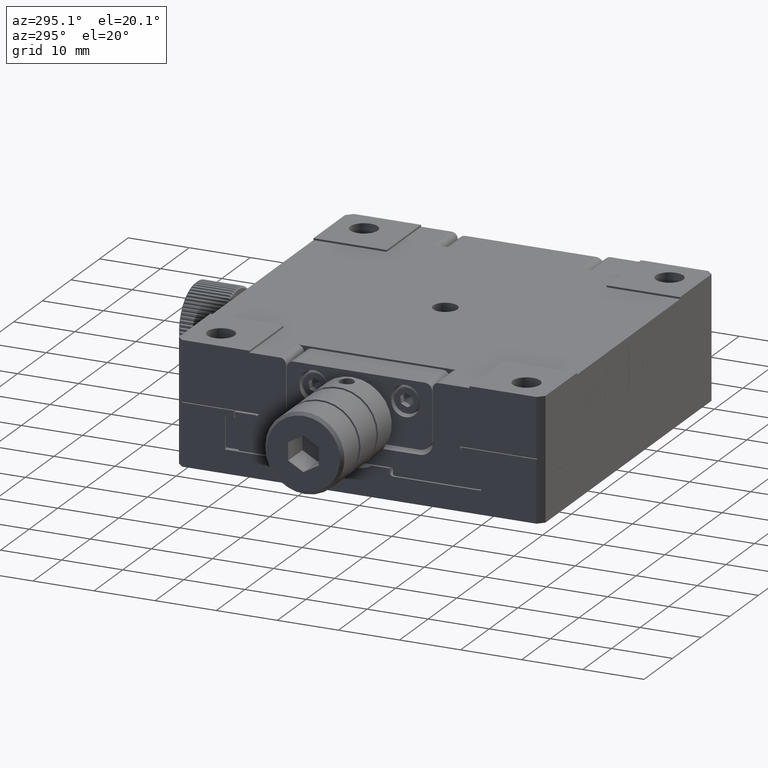
[diagram: clean part render]
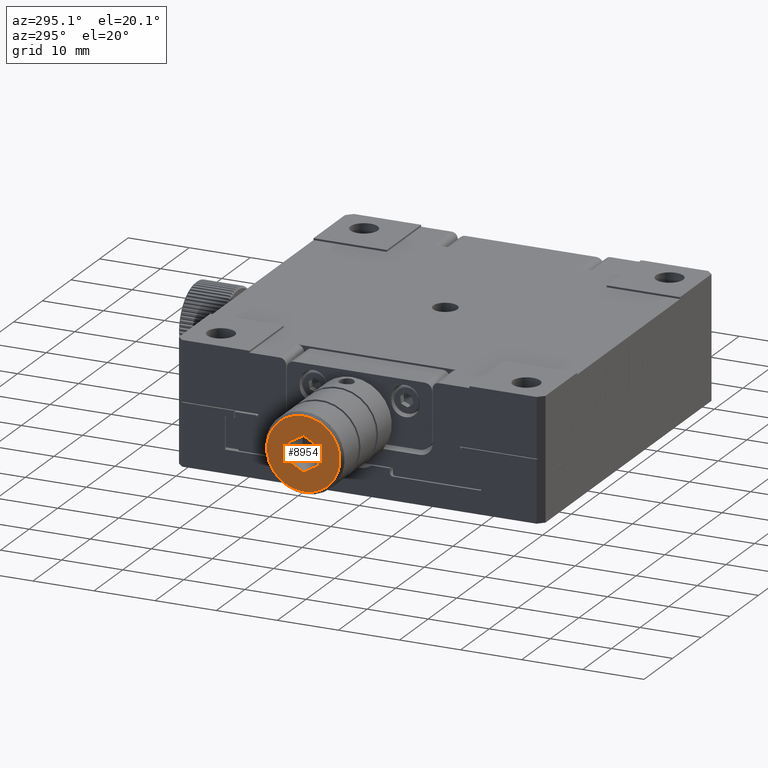
[diagram: same view with one face highlighted and labeled with its STEP entity id]
A machine part, auxiliary view. The second image highlights one B-rep face of the part: STEP entity #8954.
In plain terms, the highlighted planar face has unit normal (1, 0, 0).
Its self-contained STEP definition (entity closure, byte-faithful):
#179 = EDGE_CURVE ( 'NONE', #11568, #2372, #26146, .T. ) ;
#699 = CARTESIAN_POINT ( 'NONE',  ( -49.54999999999999005, -2.500000000000007550, 94.44337567297404235 ) ) ;
#1236 = DIRECTION ( 'NONE',  ( 1.000000000000000000, 3.947454862354369976E-30, 1.681558157189780485E-44 ) ) ;
#1424 = FACE_BOUND ( 'NONE', #18571, .T. ) ;
#2244 = LINE ( 'NONE', #13769, #31526 ) ;
#2372 = VERTEX_POINT ( 'NONE', #28514 ) ;
#3397 = CARTESIAN_POINT ( 'NONE',  ( -49.54999999999999005, -6.872842731605662646E-15, 90.11324865405185847 ) ) ;
#3713 = DIRECTION ( 'NONE',  ( 0.000000000000000000, 0.8660254037844390407, 0.4999999999999993339 ) ) ;
#4070 = DIRECTION ( 'NONE',  ( -3.947454862354369976E-30, 1.000000000000000000, 0.000000000000000000 ) ) ;
#5331 = CARTESIAN_POINT ( 'NONE',  ( -49.55000000006748451, -6.938893903907228378E-15, 87.00000000002816591 ) ) ;
#5460 = CARTESIAN_POINT ( 'NONE',  ( -49.54999999999999005, 2.499999999999992895, 94.44337567297404235 ) ) ;
#5756 = LINE ( 'NONE', #31217, #34509 ) ;
#5992 = CARTESIAN_POINT ( 'NONE',  ( -49.55000000006748451, -6.938893903907228378E-15, 92.99999999999998579 ) ) ;
#6703 = ORIENTED_EDGE ( 'NONE', *, *, #16441, .F. ) ;
#7062 = VERTEX_POINT ( 'NONE', #20707 ) ;
#7107 = ORIENTED_EDGE ( 'NONE', *, *, #17679, .F. ) ;
#8385 = DIRECTION ( 'NONE',  ( 0.000000000000000000, -0.8660254037844369313, -0.5000000000000028866 ) ) ;
#8411 = VECTOR ( 'NONE', #8524, 1000.000000000000000 ) ;
#8524 = DIRECTION ( 'NONE',  ( 0.000000000000000000, 0.8660254037844390407, -0.4999999999999993339 ) ) ;
#8954 = ADVANCED_FACE ( 'NONE', ( #27061, #1424 ), #27251, .F. ) ;
#9633 = VECTOR ( 'NONE', #23330, 1000.000000000000000 ) ;
#9974 = VECTOR ( 'NONE', #35272, 1000.000000000000227 ) ;
#10806 = VERTEX_POINT ( 'NONE', #5331 ) ;
#11272 = DIRECTION ( 'NONE',  ( 1.000000000000000000, 0.000000000000000000, -0.000000000000000000 ) ) ;
#11568 = VERTEX_POINT ( 'NONE', #35283 ) ;
#11733 = EDGE_LOOP ( 'NONE', ( #6703 ) ) ;
#11820 = CARTESIAN_POINT ( 'NONE',  ( -49.54999999999999005, -2.500000000000007550, 92.99999999999998579 ) ) ;
#11872 = ORIENTED_EDGE ( 'NONE', *, *, #13834, .F. ) ;
#13769 = CARTESIAN_POINT ( 'NONE',  ( -49.54999999999999005, 2.499999999999993339, 92.99999999999998579 ) ) ;
#13834 = EDGE_CURVE ( 'NONE', #29508, #28712, #2244, .T. ) ;
#14588 = ORIENTED_EDGE ( 'NONE', *, *, #31820, .F. ) ;
#15406 = CARTESIAN_POINT ( 'NONE',  ( -49.54999999999999005, -6.938893903907304108E-15, 92.99999999999998579 ) ) ;
#16008 = AXIS2_PLACEMENT_3D ( 'NONE', #15406, #1236, #4070 ) ;
#16441 = EDGE_CURVE ( 'NONE', #10806, #10806, #28622, .T. ) ;
#17679 = EDGE_CURVE ( 'NONE', #2372, #7062, #34841, .T. ) ;
#18571 = EDGE_LOOP ( 'NONE', ( #21888, #14588, #30498, #11872, #32086, #7107 ) ) ;
#20707 = CARTESIAN_POINT ( 'NONE',  ( -49.54999999999999005, -7.616339628225165014E-15, 95.88675134594811311 ) ) ;
#21888 = ORIENTED_EDGE ( 'NONE', *, *, #179, .F. ) ;
#23330 = DIRECTION ( 'NONE',  ( -1.681558157189780485E-44, -6.637874923930453350E-74, 1.000000000000000000 ) ) ;
#24465 = VECTOR ( 'NONE', #3713, 1000.000000000000000 ) ;
#26146 = LINE ( 'NONE', #11820, #9633 ) ;
#26624 = EDGE_CURVE ( 'NONE', #28712, #28181, #5756, .T. ) ;
#27024 = CARTESIAN_POINT ( 'NONE',  ( -49.54999999999999005, -7.882546439778299433E-15, 90.11324865405187268 ) ) ;
#27061 = FACE_OUTER_BOUND ( 'NONE', #11733, .T. ) ;
#27251 = PLANE ( 'NONE',  #16008 ) ;
#28181 = VERTEX_POINT ( 'NONE', #27024 ) ;
#28514 = CARTESIAN_POINT ( 'NONE',  ( -49.54999999999999005, -2.500000000000007550, 94.44337567297404235 ) ) ;
#28622 = CIRCLE ( 'NONE', #31018, 5.999999999971819875 ) ;
#28712 = VERTEX_POINT ( 'NONE', #30186 ) ;
#29508 = VERTEX_POINT ( 'NONE', #5460 ) ;
#29806 = LINE ( 'NONE', #3397, #9974 ) ;
#30186 = CARTESIAN_POINT ( 'NONE',  ( -49.54999999999999005, 2.499999999999993339, 91.55662432702594344 ) ) ;
#30498 = ORIENTED_EDGE ( 'NONE', *, *, #26624, .F. ) ;
#31018 = AXIS2_PLACEMENT_3D ( 'NONE', #5992, #11272, #31830 ) ;
#31217 = CARTESIAN_POINT ( 'NONE',  ( -49.54999999999999005, 2.499999999999993783, 91.55662432702594344 ) ) ;
#31526 = VECTOR ( 'NONE', #36751, 1000.000000000000000 ) ;
#31732 = LINE ( 'NONE', #31916, #8411 ) ;
#31820 = EDGE_CURVE ( 'NONE', #28181, #11568, #29806, .T. ) ;
#31830 = DIRECTION ( 'NONE',  ( 0.000000000000000000, 0.000000000000000000, -1.000000000000000000 ) ) ;
#31916 = CARTESIAN_POINT ( 'NONE',  ( -49.54999999999999005, -7.032050130521082392E-15, 95.88675134594811311 ) ) ;
#32086 = ORIENTED_EDGE ( 'NONE', *, *, #35965, .F. ) ;
#34509 = VECTOR ( 'NONE', #8385, 1000.000000000000227 ) ;
#34841 = LINE ( 'NONE', #699, #24465 ) ;
#35272 = DIRECTION ( 'NONE',  ( 0.000000000000000000, -0.8660254037844369313, 0.5000000000000028866 ) ) ;
#35283 = CARTESIAN_POINT ( 'NONE',  ( -49.54999999999999005, -2.500000000000008438, 91.55662432702594344 ) ) ;
#35965 = EDGE_CURVE ( 'NONE', #7062, #29508, #31732, .T. ) ;
#36751 = DIRECTION ( 'NONE',  ( 1.681558157189780485E-44, 6.637874923930453350E-74, -1.000000000000000000 ) ) ;